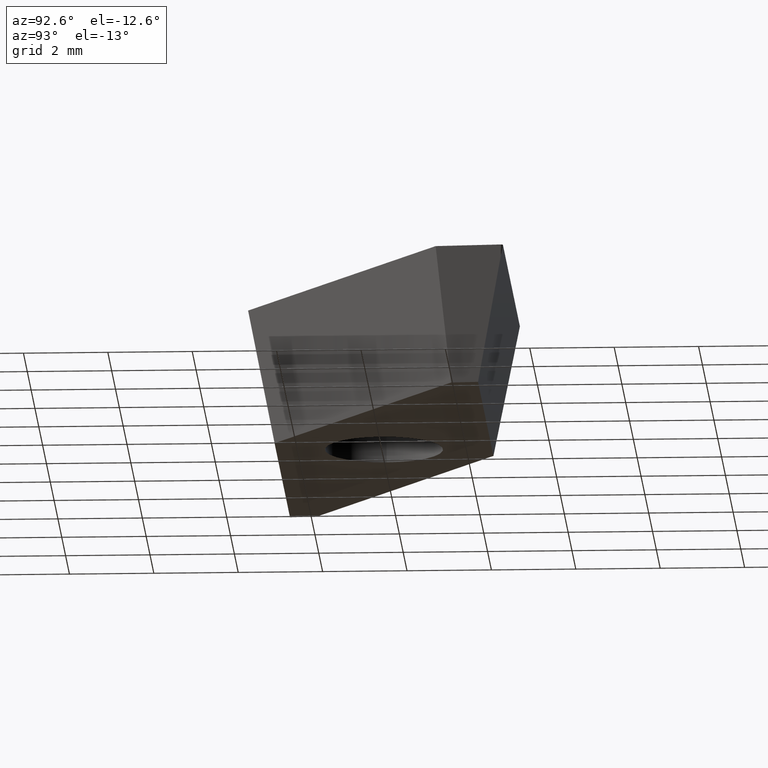
[diagram: clean part render]
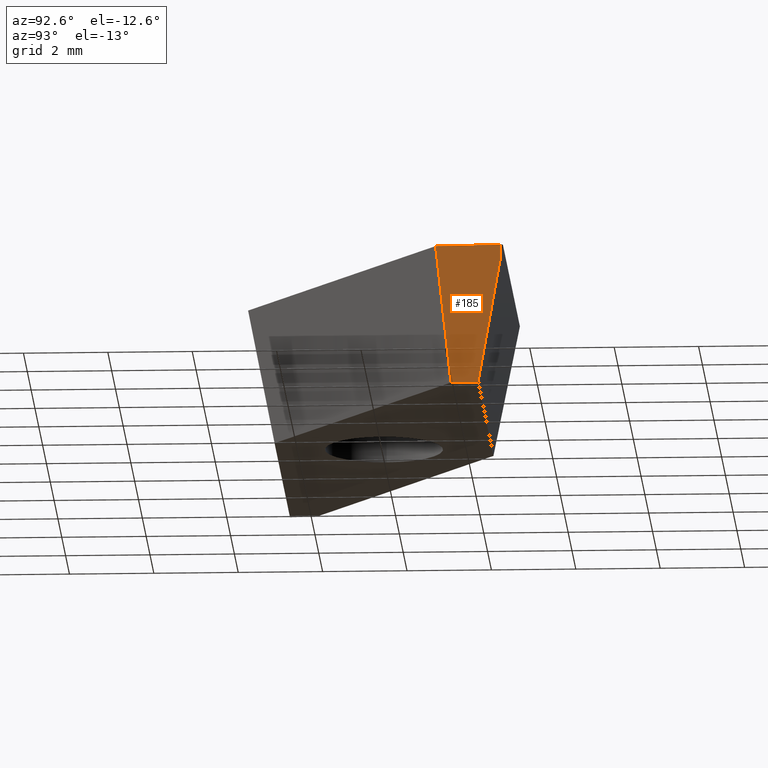
[diagram: same view with one face highlighted and labeled with its STEP entity id]
A machine part, auxiliary view. The second image highlights one B-rep face of the part: STEP entity #185.
In plain terms, the highlighted planar face has unit normal (0.9792, -0.0685, -0.1908).
Its self-contained STEP definition (entity closure, byte-faithful):
#13 = CARTESIAN_POINT ( 'NONE',  ( 7.283376349052109500, 3.218118526079754900, -3.180000000000000200 ) ) ;
#22 = LINE ( 'NONE', #298, #24 ) ;
#24 = VECTOR ( 'NONE', #306, 1000.000000000000100 ) ;
#47 = PLANE ( 'NONE',  #401 ) ;
#48 = FACE_OUTER_BOUND ( 'NONE', #352, .T. ) ;
#52 = DIRECTION ( 'NONE',  ( 0.1832382521941806600, -0.1036712150141735900, 0.9775868360970839700 ) ) ;
#59 = CARTESIAN_POINT ( 'NONE',  ( 7.788289079147451100, 1.577459403657729400, 3.148184459698170000E-018 ) ) ;
#60 = DIRECTION ( 'NONE',  ( 0.06975647374412545500, 0.9975640502598242000, 0.0000000000000000000 ) ) ;
#86 = VERTEX_POINT ( 'NONE', #229 ) ;
#110 = CARTESIAN_POINT ( 'NONE',  ( 7.900000000000000400, 3.175000000000000700, 0.0000000000000000000 ) ) ;
#137 = CARTESIAN_POINT ( 'NONE',  ( 7.896259767011756900, 3.121512176312794200, 0.0000000000000000000 ) ) ;
#150 = DIRECTION ( 'NONE',  ( 0.9792359889651950400, -0.06847485084868677700, -0.1908089953765452500 ) ) ;
#151 = DIRECTION ( 'NONE',  ( 0.1903441942538345300, -0.01331016267612693300, 0.9816271834476638600 ) ) ;
#154 = CARTESIAN_POINT ( 'NONE',  ( 7.896259767011756900, 3.121512176312794200, -2.478630161902896400E-016 ) ) ;
#185 = ADVANCED_FACE ( 'NONE', ( #48 ), #47, .T. ) ;
#187 = CARTESIAN_POINT ( 'NONE',  ( 7.900000000000000400, 3.175000000000000700, 0.0000000000000000000 ) ) ;
#192 = VECTOR ( 'NONE', #268, 1000.000000000000200 ) ;
#205 = EDGE_CURVE ( 'NONE', #86, #275, #22, .T. ) ;
#220 = VECTOR ( 'NONE', #52, 1000.000000000000000 ) ;
#227 = VERTEX_POINT ( 'NONE', #421 ) ;
#229 = CARTESIAN_POINT ( 'NONE',  ( 7.237137390861797700, 2.556870616942054300, -3.180000000000000200 ) ) ;
#232 = LINE ( 'NONE', #110, #192 ) ;
#239 = VECTOR ( 'NONE', #60, 1000.000000000000100 ) ;
#240 = CARTESIAN_POINT ( 'NONE',  ( 7.192231910145610000, 1.914692324122640600, -3.180000000000000200 ) ) ;
#248 = LINE ( 'NONE', #59, #220 ) ;
#251 = VECTOR ( 'NONE', #151, 1000.000000000000100 ) ;
#253 = ORIENTED_EDGE ( 'NONE', *, *, #432, .T. ) ;
#255 = ORIENTED_EDGE ( 'NONE', *, *, #205, .T. ) ;
#256 = ORIENTED_EDGE ( 'NONE', *, *, #428, .T. ) ;
#257 = ORIENTED_EDGE ( 'NONE', *, *, #441, .F. ) ;
#258 = ORIENTED_EDGE ( 'NONE', *, *, #433, .F. ) ;
#259 = LINE ( 'NONE', #13, #239 ) ;
#260 = LINE ( 'NONE', #154, #251 ) ;
#266 = VERTEX_POINT ( 'NONE', #240 ) ;
#268 = DIRECTION ( 'NONE',  ( 0.06975647374412544100, 0.9975640502598242000, -0.0000000000000000000 ) ) ;
#275 = VERTEX_POINT ( 'NONE', #406 ) ;
#298 = CARTESIAN_POINT ( 'NONE',  ( 7.900000000000000400, 3.175000000000000700, 0.0000000000000000000 ) ) ;
#306 = DIRECTION ( 'NONE',  ( 0.2004640746510997800, 0.1869357738407769500, 0.9617011860410842300 ) ) ;
#331 = VERTEX_POINT ( 'NONE', #137 ) ;
#335 = DIRECTION ( 'NONE',  ( -0.1912579077465619300, 0.0000000000000000000, -0.9815398171874677400 ) ) ;
#352 = EDGE_LOOP ( 'NONE', ( #253, #255, #256, #257, #258 ) ) ;
#401 = AXIS2_PLACEMENT_3D ( 'NONE', #187, #150, #335 ) ;
#406 = CARTESIAN_POINT ( 'NONE',  ( 7.846381564498765100, 3.125000000000000400, -0.2572277007985165300 ) ) ;
#421 = CARTESIAN_POINT ( 'NONE',  ( 7.788289079147451100, 1.577459403657729400, 0.0000000000000000000 ) ) ;
#428 = EDGE_CURVE ( 'NONE', #275, #331, #260, .T. ) ;
#432 = EDGE_CURVE ( 'NONE', #266, #86, #259, .T. ) ;
#433 = EDGE_CURVE ( 'NONE', #266, #227, #248, .T. ) ;
#441 = EDGE_CURVE ( 'NONE', #227, #331, #232, .T. ) ;